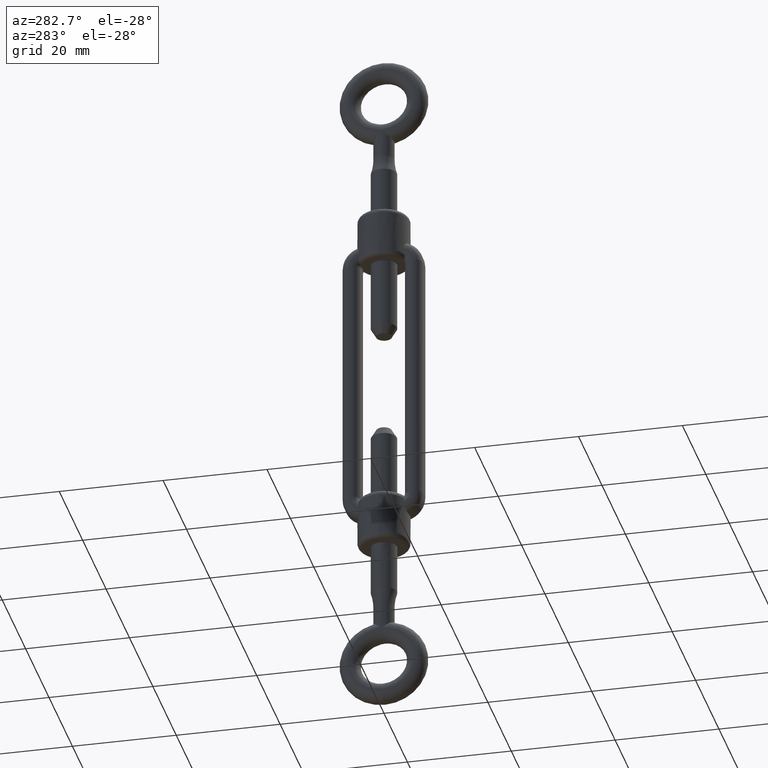
[diagram: clean part render]
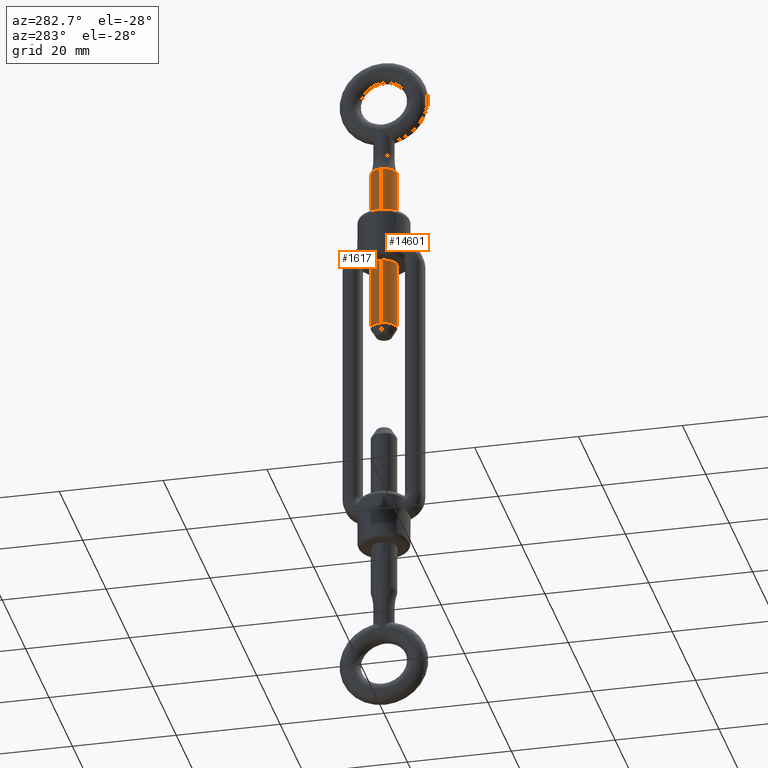
[diagram: same view with one multi-face feature highlighted, each face labeled with its STEP entity id]
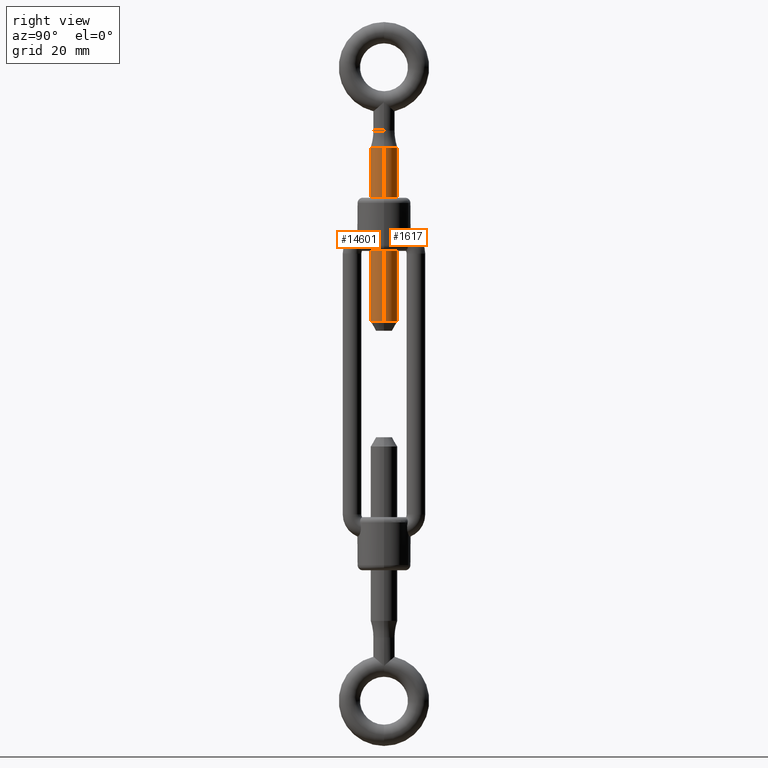
[diagram: same view with one multi-face feature highlighted, each face labeled with its STEP entity id]
A machine part, auxiliary view. The highlighted faces form ONE feature: a constant-radius fillet chain: 2 tangent blend faces with common blend radius 2.5 mm. The faces share edges in the B-rep.
A second angle (right view) of the same feature is appended — it is thin or edge-on in the first view.
Their STEP definitions:
[1] entity #1617 (Cylinder):
#248 = AXIS2_PLACEMENT_3D ( 'NONE', #3665, #6553, #12372 ) ;
#561 = AXIS2_PLACEMENT_3D ( 'NONE', #1608, #11698, #13080 ) ;
#1036 = CARTESIAN_POINT ( 'NONE',  ( 0.0000000000000000000, -23.50000000000000000, -2.500000000000000000 ) ) ;
#1608 = CARTESIAN_POINT ( 'NONE',  ( 0.0000000000000000000, -23.50000000000000000, 0.0000000000000000000 ) ) ;
#1617 = ADVANCED_FACE ( 'NONE', ( #10437 ), #5473, .T. ) ;
#2281 = DIRECTION ( 'NONE',  ( -0.0000000000000000000, -1.000000000000000000, -0.0000000000000000000 ) ) ;
#2915 = VECTOR ( 'NONE', #16364, 1000.000000000000000 ) ;
#3665 = CARTESIAN_POINT ( 'NONE',  ( 0.0000000000000000000, -56.26794919243116100, 0.0000000000000000000 ) ) ;
#3730 = ORIENTED_EDGE ( 'NONE', *, *, #4456, .T. ) ;
#4456 = EDGE_CURVE ( 'NONE', #6199, #12155, #14385, .T. ) ;
#5235 = DIRECTION ( 'NONE',  ( 0.0000000000000000000, 0.0000000000000000000, 1.000000000000000000 ) ) ;
#5473 = CYLINDRICAL_SURFACE ( 'NONE', #561, 2.500000000000000000 ) ;
#5565 = AXIS2_PLACEMENT_3D ( 'NONE', #9398, #18068, #5235 ) ;
#6180 = CARTESIAN_POINT ( 'NONE',  ( 0.0000000000000000000, -56.26794919243116100, -2.500000000000000000 ) ) ;
#6199 = VERTEX_POINT ( 'NONE', #6180 ) ;
#6553 = DIRECTION ( 'NONE',  ( -0.0000000000000000000, 1.000000000000000000, -0.0000000000000000000 ) ) ;
#6709 = LINE ( 'NONE', #10503, #2915 ) ;
#7198 = EDGE_LOOP ( 'NONE', ( #7455, #9200, #17567, #3730 ) ) ;
#7455 = ORIENTED_EDGE ( 'NONE', *, *, #16168, .F. ) ;
#9200 = ORIENTED_EDGE ( 'NONE', *, *, #12488, .F. ) ;
#9398 = CARTESIAN_POINT ( 'NONE',  ( 0.0000000000000000000, -23.50000000000000000, 0.0000000000000000000 ) ) ;
#9835 = CARTESIAN_POINT ( 'NONE',  ( 3.061616997868383100E-016, -56.26794919243116100, 2.500000000000000000 ) ) ;
#10432 = CIRCLE ( 'NONE', #5565, 2.500000000000000000 ) ;
#10437 = FACE_OUTER_BOUND ( 'NONE', #7198, .T. ) ;
#10503 = CARTESIAN_POINT ( 'NONE',  ( 3.061616997868383100E-016, -23.50000000000000000, 2.500000000000000000 ) ) ;
#10591 = VERTEX_POINT ( 'NONE', #1036 ) ;
#10911 = VERTEX_POINT ( 'NONE', #11932 ) ;
#11698 = DIRECTION ( 'NONE',  ( -0.0000000000000000000, -1.000000000000000000, -0.0000000000000000000 ) ) ;
#11932 = CARTESIAN_POINT ( 'NONE',  ( 3.061616997868383100E-016, -23.50000000000000000, 2.500000000000000000 ) ) ;
#12155 = VERTEX_POINT ( 'NONE', #9835 ) ;
#12372 = DIRECTION ( 'NONE',  ( 0.0000000000000000000, 0.0000000000000000000, 1.000000000000000000 ) ) ;
#12488 = EDGE_CURVE ( 'NONE', #10591, #10911, #10432, .T. ) ;
#13080 = DIRECTION ( 'NONE',  ( 0.0000000000000000000, 0.0000000000000000000, -1.000000000000000000 ) ) ;
#13306 = VECTOR ( 'NONE', #2281, 1000.000000000000000 ) ;
#13947 = CARTESIAN_POINT ( 'NONE',  ( 0.0000000000000000000, -23.50000000000000000, -2.500000000000000000 ) ) ;
#14385 = CIRCLE ( 'NONE', #248, 2.500000000000000000 ) ;
#15553 = EDGE_CURVE ( 'NONE', #10591, #6199, #17112, .T. ) ;
#16168 = EDGE_CURVE ( 'NONE', #10911, #12155, #6709, .T. ) ;
#16364 = DIRECTION ( 'NONE',  ( -0.0000000000000000000, -1.000000000000000000, -0.0000000000000000000 ) ) ;
#17112 = LINE ( 'NONE', #13947, #13306 ) ;
#17567 = ORIENTED_EDGE ( 'NONE', *, *, #15553, .T. ) ;
#18068 = DIRECTION ( 'NONE',  ( 0.0000000000000000000, 1.000000000000000000, 0.0000000000000000000 ) ) ;
[2] entity #14601 (Cylinder):
#460 = CIRCLE ( 'NONE', #13782, 2.500000000000000000 ) ;
#877 = CARTESIAN_POINT ( 'NONE',  ( 0.0000000000000000000, -23.50000000000000000, 0.0000000000000000000 ) ) ;
#1036 = CARTESIAN_POINT ( 'NONE',  ( 0.0000000000000000000, -23.50000000000000000, -2.500000000000000000 ) ) ;
#1363 = CARTESIAN_POINT ( 'NONE',  ( 0.0000000000000000000, -23.50000000000000000, 0.0000000000000000000 ) ) ;
#2281 = DIRECTION ( 'NONE',  ( -0.0000000000000000000, -1.000000000000000000, -0.0000000000000000000 ) ) ;
#2378 = ORIENTED_EDGE ( 'NONE', *, *, #16168, .T. ) ;
#2915 = VECTOR ( 'NONE', #16364, 1000.000000000000000 ) ;
#3761 = DIRECTION ( 'NONE',  ( 0.0000000000000000000, 0.0000000000000000000, 1.000000000000000000 ) ) ;
#3875 = AXIS2_PLACEMENT_3D ( 'NONE', #1363, #5581, #9913 ) ;
#4581 = FACE_OUTER_BOUND ( 'NONE', #15614, .T. ) ;
#5557 = EDGE_CURVE ( 'NONE', #12155, #6199, #460, .T. ) ;
#5581 = DIRECTION ( 'NONE',  ( -0.0000000000000000000, -1.000000000000000000, -0.0000000000000000000 ) ) ;
#5649 = ORIENTED_EDGE ( 'NONE', *, *, #11100, .F. ) ;
#6180 = CARTESIAN_POINT ( 'NONE',  ( 0.0000000000000000000, -56.26794919243116100, -2.500000000000000000 ) ) ;
#6199 = VERTEX_POINT ( 'NONE', #6180 ) ;
#6623 = AXIS2_PLACEMENT_3D ( 'NONE', #877, #12405, #3761 ) ;
#6709 = LINE ( 'NONE', #10503, #2915 ) ;
#9439 = ORIENTED_EDGE ( 'NONE', *, *, #5557, .T. ) ;
#9835 = CARTESIAN_POINT ( 'NONE',  ( 3.061616997868383100E-016, -56.26794919243116100, 2.500000000000000000 ) ) ;
#9913 = DIRECTION ( 'NONE',  ( 0.0000000000000000000, 0.0000000000000000000, -1.000000000000000000 ) ) ;
#10210 = CYLINDRICAL_SURFACE ( 'NONE', #3875, 2.500000000000000000 ) ;
#10503 = CARTESIAN_POINT ( 'NONE',  ( 3.061616997868383100E-016, -23.50000000000000000, 2.500000000000000000 ) ) ;
#10591 = VERTEX_POINT ( 'NONE', #1036 ) ;
#10911 = VERTEX_POINT ( 'NONE', #11932 ) ;
#11100 = EDGE_CURVE ( 'NONE', #10911, #10591, #11323, .T. ) ;
#11323 = CIRCLE ( 'NONE', #6623, 2.500000000000000000 ) ;
#11932 = CARTESIAN_POINT ( 'NONE',  ( 3.061616997868383100E-016, -23.50000000000000000, 2.500000000000000000 ) ) ;
#12155 = VERTEX_POINT ( 'NONE', #9835 ) ;
#12405 = DIRECTION ( 'NONE',  ( 0.0000000000000000000, 1.000000000000000000, 0.0000000000000000000 ) ) ;
#13306 = VECTOR ( 'NONE', #2281, 1000.000000000000000 ) ;
#13782 = AXIS2_PLACEMENT_3D ( 'NONE', #14952, #14895, #17770 ) ;
#13947 = CARTESIAN_POINT ( 'NONE',  ( 0.0000000000000000000, -23.50000000000000000, -2.500000000000000000 ) ) ;
#14601 = ADVANCED_FACE ( 'NONE', ( #4581 ), #10210, .T. ) ;
#14895 = DIRECTION ( 'NONE',  ( -0.0000000000000000000, 1.000000000000000000, -0.0000000000000000000 ) ) ;
#14952 = CARTESIAN_POINT ( 'NONE',  ( 0.0000000000000000000, -56.26794919243116100, 0.0000000000000000000 ) ) ;
#15553 = EDGE_CURVE ( 'NONE', #10591, #6199, #17112, .T. ) ;
#15614 = EDGE_LOOP ( 'NONE', ( #5649, #2378, #9439, #17361 ) ) ;
#16168 = EDGE_CURVE ( 'NONE', #10911, #12155, #6709, .T. ) ;
#16364 = DIRECTION ( 'NONE',  ( -0.0000000000000000000, -1.000000000000000000, -0.0000000000000000000 ) ) ;
#17112 = LINE ( 'NONE', #13947, #13306 ) ;
#17361 = ORIENTED_EDGE ( 'NONE', *, *, #15553, .F. ) ;
#17770 = DIRECTION ( 'NONE',  ( 0.0000000000000000000, 0.0000000000000000000, 1.000000000000000000 ) ) ;